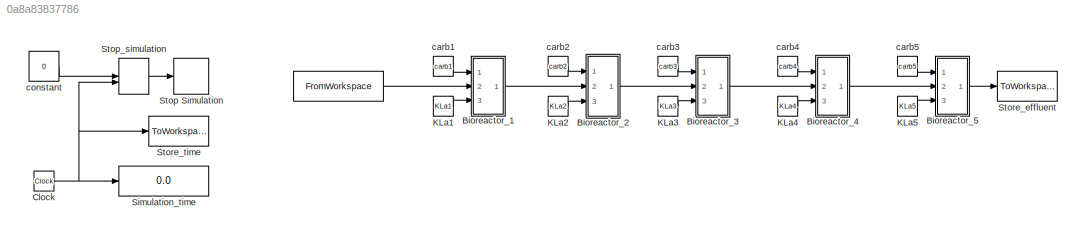
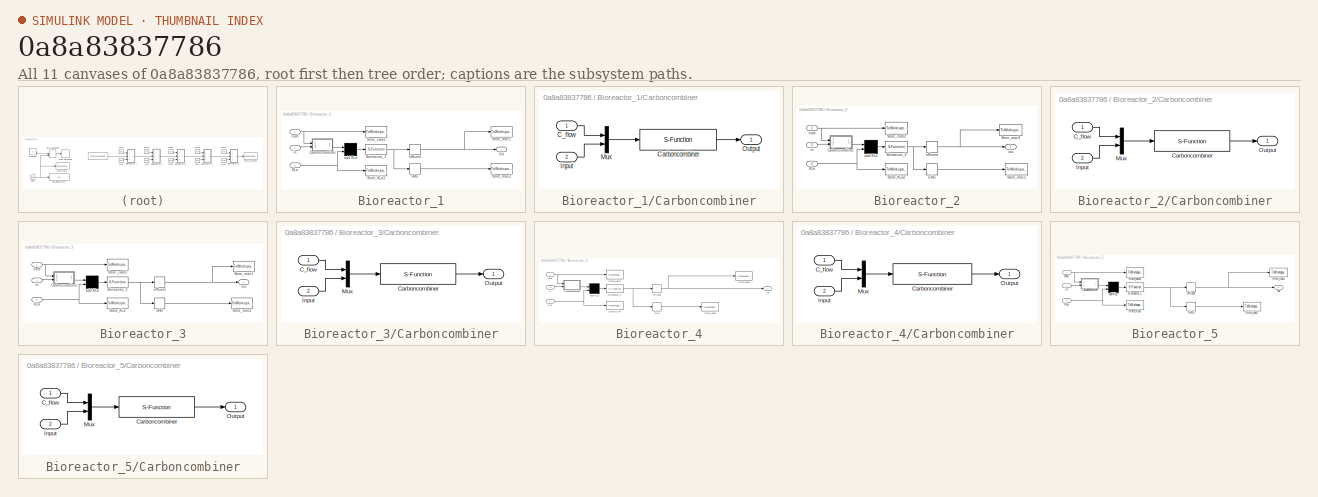
[diagram: thumbnail index - all 11 canvases of the model, root first then tree order]
MODEL slx_0a8a83837786
KIND model
BLOCK [FromWorkspace]  
  OutputAfterFinalValue = Holding final value
  VariableName = INFLUENT
BLOCK [Constant]  constant
  Value = 0
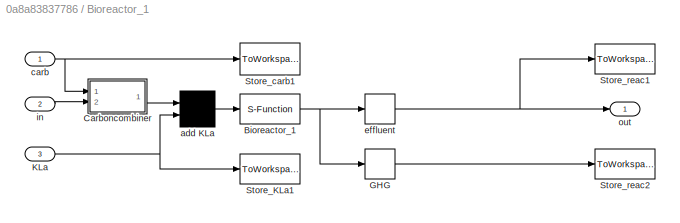
BLOCK [SubSystem] Bioreactor_1
  FunctionWithSeparateData = off
  MaskHideContents = off
  MinAlgLoopOccurrences = off
  Opaque = off
  Ports = [3, 1]
  PropExecContextOutsideSubsystem = off
  RTWSystemCode = Auto
  RequestExecContextInheritance = off
BLOCK [S-Function] Bioreactor_1/Bioreactor_1
  EnableBusSupport = off
  FunctionName = asm1_bsm1
  Parameters = XINIT1,PAR1,VOL1,SOSAT1,TEMPMODEL,ACTIVATE
  Ports = [1, 1]
BLOCK [SubSystem] Bioreactor_1/Carboncombiner
  FunctionWithSeparateData = off
  MaskHideContents = off
  MinAlgLoopOccurrences = off
  Opaque = off
  Ports = [2, 1]
  PropExecContextOutsideSubsystem = off
  RTWSystemCode = Auto
  RequestExecContextInheritance = off
BLOCK [Inport] Bioreactor_1/Carboncombiner/C_flow
  IconDisplay = Port number
BLOCK [S-Function] Bioreactor_1/Carboncombiner/Carboncombiner
  EnableBusSupport = off
  FunctionName = carboncombiner_bsm1
  Parameters = CARBONSOURCECONC
  Ports = [1, 1]
BLOCK [Inport] Bioreactor_1/Carboncombiner/Input
  IconDisplay = Port number
  Port = 2
BLOCK [Mux] Bioreactor_1/Carboncombiner/Mux
  DisplayOption = bar
  Inputs = 2
  Ports = [2, 1]
BLOCK [Outport] Bioreactor_1/Carboncombiner/Output
  IconDisplay = Port number
BLOCK [Selector] Bioreactor_1/GHG
  IndexOptions = Index vector (dialog)
  Indices = [27:29]
  InputPortWidth = 29
  OutputSizes = 1
  Ports = [1, 1]
BLOCK [Inport] Bioreactor_1/KLa
  IconDisplay = Port number
  Port = 3
BLOCK [ToWorkspace] Bioreactor_1/Store_KLa1
  MaxDataPoints = inf
  Ports = [1]
  SampleTime = -1
  VariableName = kla1in
BLOCK [ToWorkspace] Bioreactor_1/Store_carb1
  MaxDataPoints = inf
  Ports = [1]
  SampleTime = -1
  VariableName = carbon1in
BLOCK [ToWorkspace] Bioreactor_1/Store_reac1
  MaxDataPoints = inf
  Ports = [1]
  SampleTime = -1
  VariableName = reac1
BLOCK [ToWorkspace] Bioreactor_1/Store_reac2
  MaxDataPoints = inf
  Ports = [1]
  SampleTime = -1
  VariableName = GHG_reac1
BLOCK [Mux] Bioreactor_1/add KLa
  Inputs = 2
  Ports = [2, 1]
BLOCK [Inport] Bioreactor_1/carb
  IconDisplay = Port number
BLOCK [Selector] Bioreactor_1/effluent
  IndexOptions = Index vector (dialog)
  Indices = [1:26]
  InputPortWidth = 29
  OutputSizes = 1
  Ports = [1, 1]
BLOCK [Inport] Bioreactor_1/in
  IconDisplay = Port number
  Port = 2
BLOCK [Outport] Bioreactor_1/out
  IconDisplay = Port number
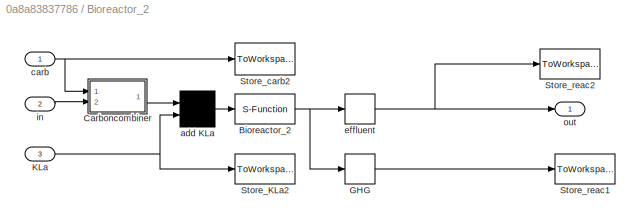
BLOCK [SubSystem] Bioreactor_2
  FunctionWithSeparateData = off
  MaskHideContents = off
  MinAlgLoopOccurrences = off
  Opaque = off
  Ports = [3, 1]
  PropExecContextOutsideSubsystem = off
  RTWSystemCode = Auto
  RequestExecContextInheritance = off
BLOCK [S-Function] Bioreactor_2/Bioreactor_2
  EnableBusSupport = off
  FunctionName = asm1_bsm1
  Parameters = XINIT2,PAR2,VOL2,SOSAT2,TEMPMODEL,ACTIVATE
  Ports = [1, 1]
BLOCK [SubSystem] Bioreactor_2/Carboncombiner
  FunctionWithSeparateData = off
  MaskHideContents = off
  MinAlgLoopOccurrences = off
  Opaque = off
  Ports = [2, 1]
  PropExecContextOutsideSubsystem = off
  RTWSystemCode = Auto
  RequestExecContextInheritance = off
BLOCK [Inport] Bioreactor_2/Carboncombiner/C_flow
  IconDisplay = Port number
BLOCK [S-Function] Bioreactor_2/Carboncombiner/Carboncombiner
  EnableBusSupport = off
  FunctionName = carboncombiner_bsm1
  Parameters = CARBONSOURCECONC
  Ports = [1, 1]
BLOCK [Inport] Bioreactor_2/Carboncombiner/Input
  IconDisplay = Port number
  Port = 2
BLOCK [Mux] Bioreactor_2/Carboncombiner/Mux
  DisplayOption = bar
  Inputs = 2
  Ports = [2, 1]
BLOCK [Outport] Bioreactor_2/Carboncombiner/Output
  IconDisplay = Port number
BLOCK [Selector] Bioreactor_2/GHG
  IndexOptions = Index vector (dialog)
  Indices = [27:29]
  InputPortWidth = 29
  OutputSizes = 1
  Ports = [1, 1]
BLOCK [Inport] Bioreactor_2/KLa
  IconDisplay = Port number
  Port = 3
BLOCK [ToWorkspace] Bioreactor_2/Store_KLa2
  MaxDataPoints = inf
  Ports = [1]
  SampleTime = -1
  VariableName = kla2in
BLOCK [ToWorkspace] Bioreactor_2/Store_carb2
  MaxDataPoints = inf
  Ports = [1]
  SampleTime = -1
  VariableName = carbon2in
BLOCK [ToWorkspace] Bioreactor_2/Store_reac1
  MaxDataPoints = inf
  Ports = [1]
  SampleTime = -1
  VariableName = GHG_reac2
BLOCK [ToWorkspace] Bioreactor_2/Store_reac2
  MaxDataPoints = inf
  Ports = [1]
  SampleTime = -1
  VariableName = reac2
BLOCK [Mux] Bioreactor_2/add KLa
  Inputs = 2
  Ports = [2, 1]
BLOCK [Inport] Bioreactor_2/carb
  IconDisplay = Port number
BLOCK [Selector] Bioreactor_2/effluent
  IndexOptions = Index vector (dialog)
  Indices = [1:26]
  InputPortWidth = 29
  OutputSizes = 1
  Ports = [1, 1]
BLOCK [Inport] Bioreactor_2/in
  IconDisplay = Port number
  Port = 2
BLOCK [Outport] Bioreactor_2/out
  IconDisplay = Port number
BLOCK [SubSystem] Bioreactor_3
  FunctionWithSeparateData = off
  MaskHideContents = off
  MinAlgLoopOccurrences = off
  Opaque = off
  Ports = [3, 1]
  PropExecContextOutsideSubsystem = off
  RTWSystemCode = Auto
  RequestExecContextInheritance = off
BLOCK [S-Function] Bioreactor_3/Bioreactor_3
  EnableBusSupport = off
  FunctionName = asm1_bsm1
  Parameters = XINIT3,PAR3,VOL3,SOSAT3,TEMPMODEL,ACTIVATE
  Ports = [1, 1]
BLOCK [SubSystem] Bioreactor_3/Carboncombiner
  FunctionWithSeparateData = off
  MaskHideContents = off
  MinAlgLoopOccurrences = off
  Opaque = off
  Ports = [2, 1]
  PropExecContextOutsideSubsystem = off
  RTWSystemCode = Auto
  RequestExecContextInheritance = off
BLOCK [Inport] Bioreactor_3/Carboncombiner/C_flow
  IconDisplay = Port number
BLOCK [S-Function] Bioreactor_3/Carboncombiner/Carboncombiner
  EnableBusSupport = off
  FunctionName = carboncombiner_bsm1
  Parameters = CARBONSOURCECONC
  Ports = [1, 1]
BLOCK [Inport] Bioreactor_3/Carboncombiner/Input
  IconDisplay = Port number
  Port = 2
BLOCK [Mux] Bioreactor_3/Carboncombiner/Mux
  DisplayOption = bar
  Inputs = 2
  Ports = [2, 1]
BLOCK [Outport] Bioreactor_3/Carboncombiner/Output
  IconDisplay = Port number
BLOCK [Selector] Bioreactor_3/GHG
  IndexOptions = Index vector (dialog)
  Indices = [27:29]
  InputPortWidth = 29
  OutputSizes = 1
  Ports = [1, 1]
BLOCK [Inport] Bioreactor_3/KLa
  IconDisplay = Port number
  Port = 3
BLOCK [ToWorkspace] Bioreactor_3/Store_KLa
  MaxDataPoints = inf
  Ports = [1]
  SampleTime = -1
  VariableName = kla3in
BLOCK [ToWorkspace] Bioreactor_3/Store_carb3
  MaxDataPoints = inf
  Ports = [1]
  SampleTime = -1
  VariableName = carbon3in
BLOCK [ToWorkspace] Bioreactor_3/Store_reac1
  MaxDataPoints = inf
  Ports = [1]
  SampleTime = -1
  VariableName = reac3
BLOCK [ToWorkspace] Bioreactor_3/Store_reac2
  MaxDataPoints = inf
  Ports = [1]
  SampleTime = -1
  VariableName = GHG_reac3
BLOCK [Mux] Bioreactor_3/add KLa
  Inputs = 2
  Ports = [2, 1]
BLOCK [Inport] Bioreactor_3/carb
  IconDisplay = Port number
BLOCK [Selector] Bioreactor_3/effluent
  IndexOptions = Index vector (dialog)
  Indices = [1:26]
  InputPortWidth = 29
  OutputSizes = 1
  Ports = [1, 1]
BLOCK [Inport] Bioreactor_3/in
  IconDisplay = Port number
  Port = 2
BLOCK [Outport] Bioreactor_3/out
  IconDisplay = Port number
BLOCK [SubSystem] Bioreactor_4
  FunctionWithSeparateData = off
  MaskHideContents = off
  MinAlgLoopOccurrences = off
  Opaque = off
  Ports = [3, 1]
  PropExecContextOutsideSubsystem = off
  RTWSystemCode = Auto
  RequestExecContextInheritance = off
BLOCK [S-Function] Bioreactor_4/Bioreactor_4
  EnableBusSupport = off
  FunctionName = asm1_bsm1
  Parameters = XINIT4,PAR4,VOL4,SOSAT4,TEMPMODEL,ACTIVATE
  Ports = [1, 1]
BLOCK [SubSystem] Bioreactor_4/Carboncombiner
  FunctionWithSeparateData = off
  MaskHideContents = off
  MinAlgLoopOccurrences = off
  Opaque = off
  Ports = [2, 1]
  PropExecContextOutsideSubsystem = off
  RTWSystemCode = Auto
  RequestExecContextInheritance = off
BLOCK [Inport] Bioreactor_4/Carboncombiner/C_flow
  IconDisplay = Port number
BLOCK [S-Function] Bioreactor_4/Carboncombiner/Carboncombiner
  EnableBusSupport = off
  FunctionName = carboncombiner_bsm1
  Parameters = CARBONSOURCECONC
  Ports = [1, 1]
BLOCK [Inport] Bioreactor_4/Carboncombiner/Input
  IconDisplay = Port number
  Port = 2
BLOCK [Mux] Bioreactor_4/Carboncombiner/Mux
  DisplayOption = bar
  Inputs = 2
  Ports = [2, 1]
BLOCK [Outport] Bioreactor_4/Carboncombiner/Output
  IconDisplay = Port number
BLOCK [Selector] Bioreactor_4/GHG
  IndexOptions = Index vector (dialog)
  Indices = [27:29]
  InputPortWidth = 29
  OutputSizes = 1
  Ports = [1, 1]
BLOCK [Inport] Bioreactor_4/KLa
  IconDisplay = Port number
  Port = 3
BLOCK [ToWorkspace] Bioreactor_4/Store_KLa4
  MaxDataPoints = inf
  Ports = [1]
  SampleTime = -1
  VariableName = kla4in
BLOCK [ToWorkspace] Bioreactor_4/Store_carb4
  MaxDataPoints = inf
  Ports = [1]
  SampleTime = -1
  VariableName = carbon4in
BLOCK [ToWorkspace] Bioreactor_4/Store_reac1
  MaxDataPoints = inf
  Ports = [1]
  SampleTime = -1
  VariableName = GHG_reac4
BLOCK [ToWorkspace] Bioreactor_4/Store_reac4
  MaxDataPoints = inf
  Ports = [1]
  SampleTime = -1
  VariableName = reac4
BLOCK [Mux] Bioreactor_4/add KLa
  Inputs = 2
  Ports = [2, 1]
BLOCK [Inport] Bioreactor_4/carb
  IconDisplay = Port number
BLOCK [Selector] Bioreactor_4/effluent
  IndexOptions = Index vector (dialog)
  Indices = [1:26]
  InputPortWidth = 29
  OutputSizes = 1
  Ports = [1, 1]
BLOCK [Inport] Bioreactor_4/in
  IconDisplay = Port number
  Port = 2
BLOCK [Outport] Bioreactor_4/out
  IconDisplay = Port number
BLOCK [SubSystem] Bioreactor_5
  FunctionWithSeparateData = off
  MaskHideContents = off
  MinAlgLoopOccurrences = off
  Opaque = off
  Ports = [3, 1]
  PropExecContextOutsideSubsystem = off
  RTWSystemCode = Auto
  RequestExecContextInheritance = off
BLOCK [S-Function] Bioreactor_5/Bioreactor_5
  EnableBusSupport = off
  FunctionName = asm1_bsm1
  Parameters = XINIT5,PAR5,VOL5,SOSAT5,TEMPMODEL,ACTIVATE
  Ports = [1, 1]
BLOCK [SubSystem] Bioreactor_5/Carboncombiner
  FunctionWithSeparateData = off
  MaskHideContents = off
  MinAlgLoopOccurrences = off
  Opaque = off
  Ports = [2, 1]
  PropExecContextOutsideSubsystem = off
  RTWSystemCode = Auto
  RequestExecContextInheritance = off
BLOCK [Inport] Bioreactor_5/Carboncombiner/C_flow
  IconDisplay = Port number
BLOCK [S-Function] Bioreactor_5/Carboncombiner/Carboncombiner
  EnableBusSupport = off
  FunctionName = carboncombiner_bsm1
  Parameters = CARBONSOURCECONC
  Ports = [1, 1]
BLOCK [Inport] Bioreactor_5/Carboncombiner/Input
  IconDisplay = Port number
  Port = 2
BLOCK [Mux] Bioreactor_5/Carboncombiner/Mux
  DisplayOption = bar
  Inputs = 2
  Ports = [2, 1]
BLOCK [Outport] Bioreactor_5/Carboncombiner/Output
  IconDisplay = Port number
BLOCK [Selector] Bioreactor_5/GHG
  IndexOptions = Index vector (dialog)
  Indices = [27:29]
  InputPortWidth = 29
  OutputSizes = 1
  Ports = [1, 1]
BLOCK [Inport] Bioreactor_5/KLa
  IconDisplay = Port number
  Port = 3
BLOCK [ToWorkspace] Bioreactor_5/Store_KLa5
  MaxDataPoints = inf
  Ports = [1]
  SampleTime = -1
  VariableName = kla5in
BLOCK [ToWorkspace] Bioreactor_5/Store_carb5
  MaxDataPoints = inf
  Ports = [1]
  SampleTime = -1
  VariableName = carbon5in
BLOCK [ToWorkspace] Bioreactor_5/Store_reac1
  MaxDataPoints = inf
  Ports = [1]
  SampleTime = -1
  VariableName = GHG_reac5
BLOCK [ToWorkspace] Bioreactor_5/Store_reac5
  MaxDataPoints = inf
  Ports = [1]
  SampleTime = -1
  VariableName = reac5
BLOCK [Mux] Bioreactor_5/add KLa
  Inputs = 2
  Ports = [2, 1]
BLOCK [Inport] Bioreactor_5/carb
  IconDisplay = Port number
BLOCK [Selector] Bioreactor_5/effluent
  IndexOptions = Index vector (dialog)
  Indices = [1:26]
  InputPortWidth = 29
  OutputSizes = 1
  Ports = [1, 1]
BLOCK [Inport] Bioreactor_5/in
  IconDisplay = Port number
  Port = 2
BLOCK [Outport] Bioreactor_5/out
  IconDisplay = Port number
BLOCK [Clock] Clock
BLOCK [Constant] KLa1
  Value = KLa1
BLOCK [Constant] KLa2
  Value = KLa2
BLOCK [Constant] KLa3
  Value = KLa3
BLOCK [Constant] KLa4
  Value = KLa4
BLOCK [Constant] KLa5
  Value = KLa5
BLOCK [Display] Simulation_time
  Decimation = 1
  Lockdown = off
  Ports = [1]
BLOCK [Stop] Stop Simulation
BLOCK [ManualSwitch] Stop_simulation
BLOCK [ToWorkspace] Store_effluent
  MaxDataPoints = inf
  Ports = [1]
  VariableName = effluent
BLOCK [ToWorkspace] Store_time
  MaxDataPoints = inf
  Ports = [1]
  VariableName = time
BLOCK [Constant] carb1
  Value = carb1
BLOCK [Constant] carb2
  Value = carb2
BLOCK [Constant] carb3
  Value = carb3
BLOCK [Constant] carb4
  Value = carb4
BLOCK [Constant] carb5
  Value = carb5
LINE  :1 -> Bioreactor_1:2
LINE  constant:1 -> Stop_simulation:1
NET Bioreactor_1/Bioreactor_1:1 -> Bioreactor_1/GHG:1, Bioreactor_1/effluent:1
LINE Bioreactor_1/Carboncombiner/C_flow:1 -> Bioreactor_1/Carboncombiner/Mux:1
LINE Bioreactor_1/Carboncombiner/Carboncombiner:1 -> Bioreactor_1/Carboncombiner/Output:1
LINE Bioreactor_1/Carboncombiner/Input:1 -> Bioreactor_1/Carboncombiner/Mux:2
LINE Bioreactor_1/Carboncombiner/Mux:1 -> Bioreactor_1/Carboncombiner/Carboncombiner:1
LINE Bioreactor_1/Carboncombiner:1 -> Bioreactor_1/add KLa:1
LINE Bioreactor_1/GHG:1 -> Bioreactor_1/Store_reac2:1
NET Bioreactor_1/KLa:1 -> Bioreactor_1/Store_KLa1:1, Bioreactor_1/add KLa:2
LINE Bioreactor_1/add KLa:1 -> Bioreactor_1/Bioreactor_1:1
NET Bioreactor_1/carb:1 -> Bioreactor_1/Carboncombiner:1, Bioreactor_1/Store_carb1:1
NET Bioreactor_1/effluent:1 -> Bioreactor_1/Store_reac1:1, Bioreactor_1/out:1
LINE Bioreactor_1/in:1 -> Bioreactor_1/Carboncombiner:2
LINE Bioreactor_1:1 -> Bioreactor_2:2
NET Bioreactor_2/Bioreactor_2:1 -> Bioreactor_2/GHG:1, Bioreactor_2/effluent:1
LINE Bioreactor_2/Carboncombiner/C_flow:1 -> Bioreactor_2/Carboncombiner/Mux:1
LINE Bioreactor_2/Carboncombiner/Carboncombiner:1 -> Bioreactor_2/Carboncombiner/Output:1
LINE Bioreactor_2/Carboncombiner/Input:1 -> Bioreactor_2/Carboncombiner/Mux:2
LINE Bioreactor_2/Carboncombiner/Mux:1 -> Bioreactor_2/Carboncombiner/Carboncombiner:1
LINE Bioreactor_2/Carboncombiner:1 -> Bioreactor_2/add KLa:1
LINE Bioreactor_2/GHG:1 -> Bioreactor_2/Store_reac1:1
NET Bioreactor_2/KLa:1 -> Bioreactor_2/Store_KLa2:1, Bioreactor_2/add KLa:2
LINE Bioreactor_2/add KLa:1 -> Bioreactor_2/Bioreactor_2:1
NET Bioreactor_2/carb:1 -> Bioreactor_2/Carboncombiner:1, Bioreactor_2/Store_carb2:1
NET Bioreactor_2/effluent:1 -> Bioreactor_2/Store_reac2:1, Bioreactor_2/out:1
LINE Bioreactor_2/in:1 -> Bioreactor_2/Carboncombiner:2
LINE Bioreactor_2:1 -> Bioreactor_3:2
NET Bioreactor_3/Bioreactor_3:1 -> Bioreactor_3/GHG:1, Bioreactor_3/effluent:1
LINE Bioreactor_3/Carboncombiner/C_flow:1 -> Bioreactor_3/Carboncombiner/Mux:1
LINE Bioreactor_3/Carboncombiner/Carboncombiner:1 -> Bioreactor_3/Carboncombiner/Output:1
LINE Bioreactor_3/Carboncombiner/Input:1 -> Bioreactor_3/Carboncombiner/Mux:2
LINE Bioreactor_3/Carboncombiner/Mux:1 -> Bioreactor_3/Carboncombiner/Carboncombiner:1
LINE Bioreactor_3/Carboncombiner:1 -> Bioreactor_3/add KLa:1
LINE Bioreactor_3/GHG:1 -> Bioreactor_3/Store_reac2:1
NET Bioreactor_3/KLa:1 -> Bioreactor_3/Store_KLa:1, Bioreactor_3/add KLa:2
LINE Bioreactor_3/add KLa:1 -> Bioreactor_3/Bioreactor_3:1
NET Bioreactor_3/carb:1 -> Bioreactor_3/Carboncombiner:1, Bioreactor_3/Store_carb3:1
NET Bioreactor_3/effluent:1 -> Bioreactor_3/Store_reac1:1, Bioreactor_3/out:1
LINE Bioreactor_3/in:1 -> Bioreactor_3/Carboncombiner:2
LINE Bioreactor_3:1 -> Bioreactor_4:2
NET Bioreactor_4/Bioreactor_4:1 -> Bioreactor_4/GHG:1, Bioreactor_4/effluent:1
LINE Bioreactor_4/Carboncombiner/C_flow:1 -> Bioreactor_4/Carboncombiner/Mux:1
LINE Bioreactor_4/Carboncombiner/Carboncombiner:1 -> Bioreactor_4/Carboncombiner/Output:1
LINE Bioreactor_4/Carboncombiner/Input:1 -> Bioreactor_4/Carboncombiner/Mux:2
LINE Bioreactor_4/Carboncombiner/Mux:1 -> Bioreactor_4/Carboncombiner/Carboncombiner:1
LINE Bioreactor_4/Carboncombiner:1 -> Bioreactor_4/add KLa:1
LINE Bioreactor_4/GHG:1 -> Bioreactor_4/Store_reac1:1
NET Bioreactor_4/KLa:1 -> Bioreactor_4/Store_KLa4:1, Bioreactor_4/add KLa:2
LINE Bioreactor_4/add KLa:1 -> Bioreactor_4/Bioreactor_4:1
NET Bioreactor_4/carb:1 -> Bioreactor_4/Carboncombiner:1, Bioreactor_4/Store_carb4:1
NET Bioreactor_4/effluent:1 -> Bioreactor_4/Store_reac4:1, Bioreactor_4/out:1
LINE Bioreactor_4/in:1 -> Bioreactor_4/Carboncombiner:2
LINE Bioreactor_4:1 -> Bioreactor_5:2
NET Bioreactor_5/Bioreactor_5:1 -> Bioreactor_5/GHG:1, Bioreactor_5/effluent:1
LINE Bioreactor_5/Carboncombiner/C_flow:1 -> Bioreactor_5/Carboncombiner/Mux:1
LINE Bioreactor_5/Carboncombiner/Carboncombiner:1 -> Bioreactor_5/Carboncombiner/Output:1
LINE Bioreactor_5/Carboncombiner/Input:1 -> Bioreactor_5/Carboncombiner/Mux:2
LINE Bioreactor_5/Carboncombiner/Mux:1 -> Bioreactor_5/Carboncombiner/Carboncombiner:1
LINE Bioreactor_5/Carboncombiner:1 -> Bioreactor_5/add KLa:1
LINE Bioreactor_5/GHG:1 -> Bioreactor_5/Store_reac1:1
NET Bioreactor_5/KLa:1 -> Bioreactor_5/Store_KLa5:1, Bioreactor_5/add KLa:2
LINE Bioreactor_5/add KLa:1 -> Bioreactor_5/Bioreactor_5:1
NET Bioreactor_5/carb:1 -> Bioreactor_5/Carboncombiner:1, Bioreactor_5/Store_carb5:1
NET Bioreactor_5/effluent:1 -> Bioreactor_5/Store_reac5:1, Bioreactor_5/out:1
LINE Bioreactor_5/in:1 -> Bioreactor_5/Carboncombiner:2
LINE Bioreactor_5:1 -> Store_effluent:1
NET Clock:1 -> Simulation_time:1, Stop_simulation:2, Store_time:1
LINE KLa1:1 -> Bioreactor_1:3
LINE KLa2:1 -> Bioreactor_2:3
LINE KLa3:1 -> Bioreactor_3:3
LINE KLa4:1 -> Bioreactor_4:3
LINE KLa5:1 -> Bioreactor_5:3
LINE Stop_simulation:1 -> Stop Simulation:1
LINE carb1:1 -> Bioreactor_1:1
LINE carb2:1 -> Bioreactor_2:1
LINE carb3:1 -> Bioreactor_3:1
LINE carb4:1 -> Bioreactor_4:1
LINE carb5:1 -> Bioreactor_5:1
note: NET lines group one-source signal fan-out (src -> all destinations, sorted); 1:1 wires keep LINE
